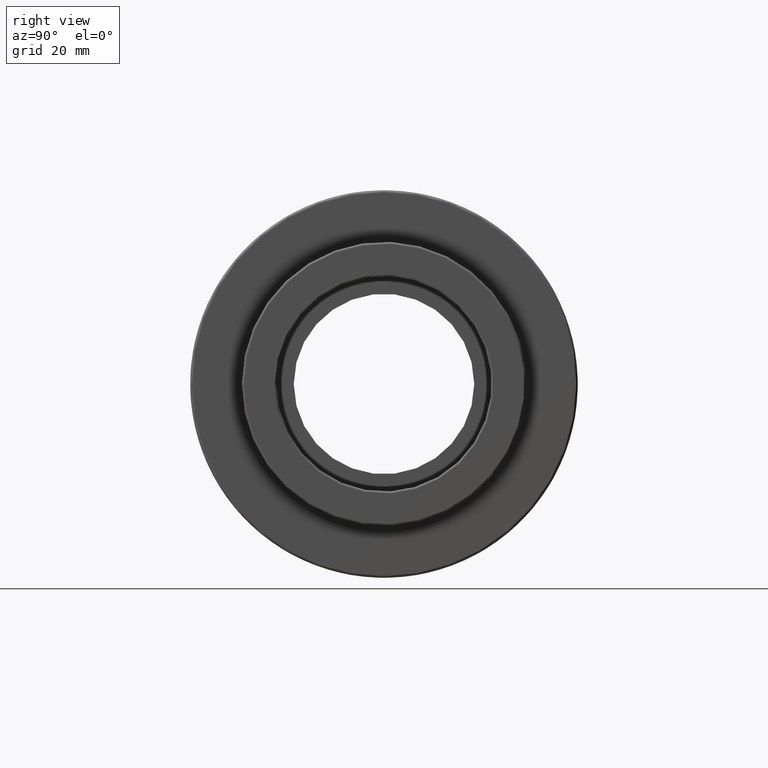
[diagram: clean part render]
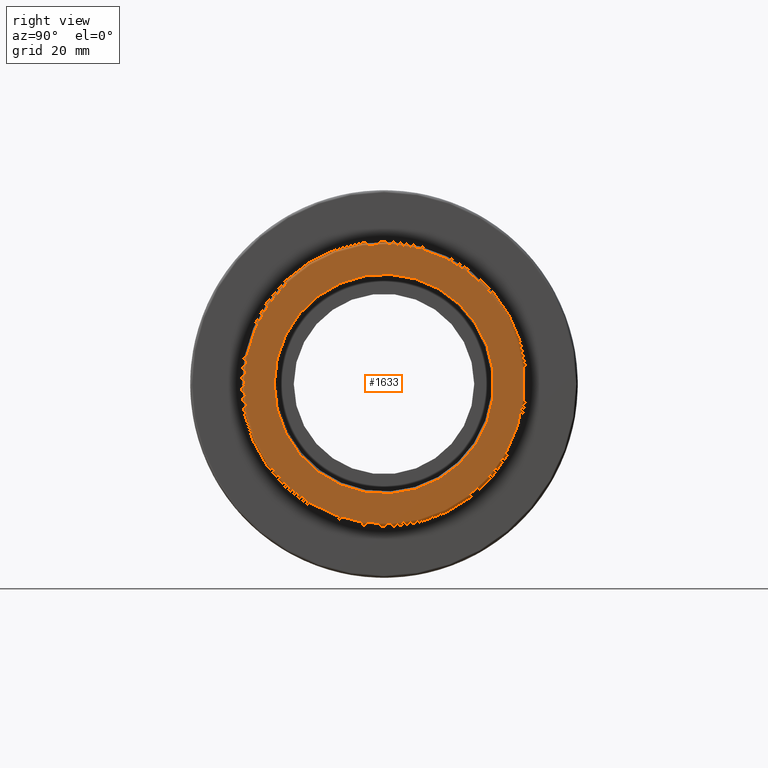
[diagram: same view with one face highlighted and labeled with its STEP entity id]
A machine part, right view. The second image highlights one B-rep face of the part: STEP entity #1633.
In plain terms, the highlighted planar face has unit normal (1, 0, 0).
Its self-contained STEP definition (entity closure, byte-faithful):
#41=FACE_BOUND('',#320,.T.);
#134=CIRCLE('',#1794,20.4);
#135=CIRCLE('',#1796,26.);
#223=FACE_OUTER_BOUND('',#319,.T.);
#319=EDGE_LOOP('',(#1382));
#320=EDGE_LOOP('',(#1383));
#792=VERTEX_POINT('',#2758);
#793=VERTEX_POINT('',#2761);
#1020=EDGE_CURVE('',#792,#792,#134,.T.);
#1021=EDGE_CURVE('',#793,#793,#135,.T.);
#1382=ORIENTED_EDGE('',*,*,#1021,.F.);
#1383=ORIENTED_EDGE('',*,*,#1020,.F.);
#1552=PLANE('',#1795);
#1633=ADVANCED_FACE('',(#223,#41),#1552,.T.);
#1794=AXIS2_PLACEMENT_3D('',#2759,#2255,#2256);
#1795=AXIS2_PLACEMENT_3D('',#2760,#2257,#2258);
#1796=AXIS2_PLACEMENT_3D('',#2762,#2259,#2260);
#2255=DIRECTION('center_axis',(1.,4.89858719658941E-16,0.));
#2256=DIRECTION('ref_axis',(-4.89858719658941E-16,1.,6.12323399573676E-17));
#2257=DIRECTION('center_axis',(1.,4.89858719658941E-16,0.));
#2258=DIRECTION('ref_axis',(0.,0.,-1.));
#2259=DIRECTION('center_axis',(-1.,-4.89858719658941E-16,0.));
#2260=DIRECTION('ref_axis',(-4.89858719658941E-16,1.,6.12323399573677E-17));
#2758=CARTESIAN_POINT('',(45.,-20.4,-3.7474192053909E-15));
#2759=CARTESIAN_POINT('Origin',(45.,3.0310008278897E-14,0.));
#2760=CARTESIAN_POINT('Origin',(45.,-26.4,0.));
#2761=CARTESIAN_POINT('',(45.,-26.,1.59204083889156E-15));
#2762=CARTESIAN_POINT('Origin',(45.,3.0310008278897E-14,0.));